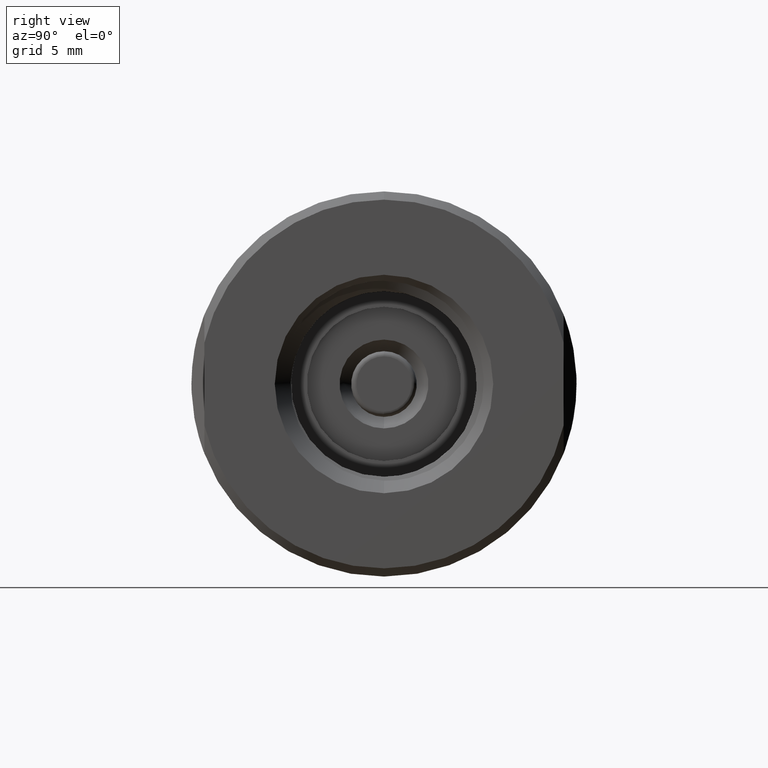
[diagram: clean part render]
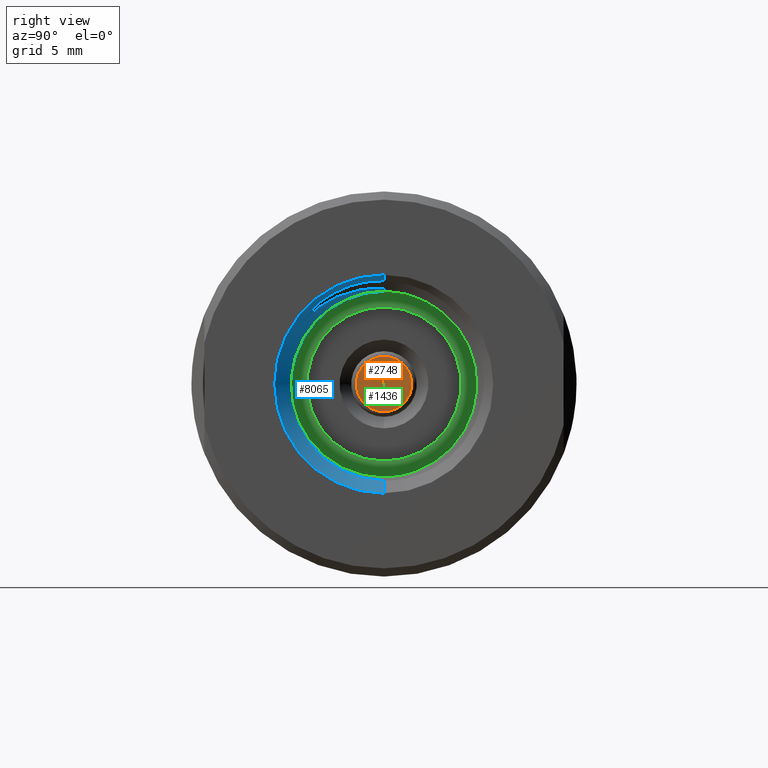
[diagram: same view with three faces highlighted in distinct colors, each labeled with its STEP entity id]
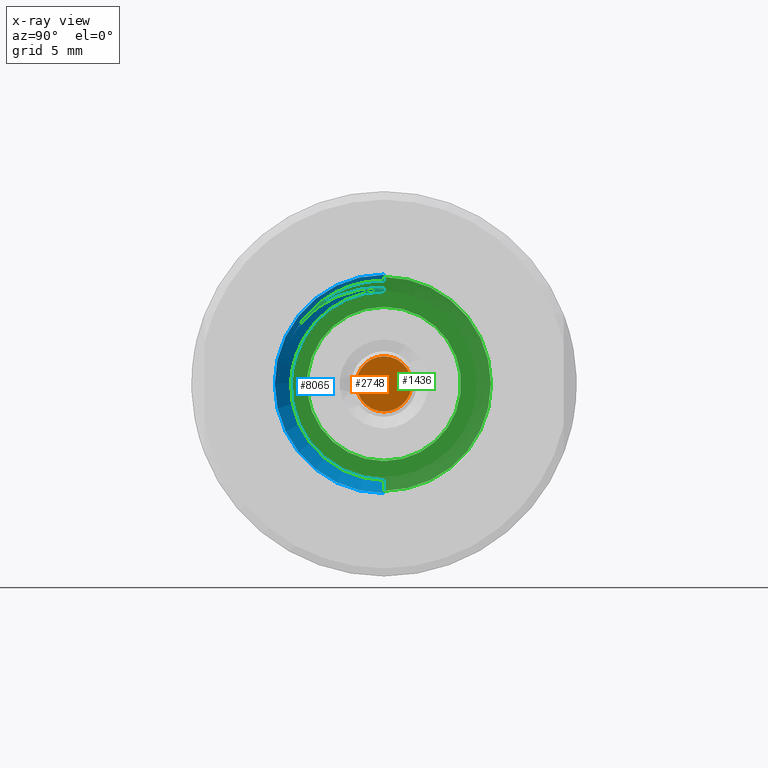
[diagram: x-ray of the same camera — body ghosted, the three highlighted faces saturated]
A machine part, right view with three faces highlighted in distinct colors.
The next image is the same camera in x-ray (body ghosted, the three faces saturated) — at least one of them is partly hidden behind the body in this view.
Their STEP definitions:

[orange] entity #2748 — the highlighted planar face has unit normal (-1, 0, -0).
#1086 = CARTESIAN_POINT ( 'NONE',  ( 0.3025000000000001021, 0.0000000000000000000, 0.0000000000000000000 ) ) ;
#1302 = CARTESIAN_POINT ( 'NONE',  ( 0.3024999999999999911, 0.06721877707974310834, 0.0000000000000000000 ) ) ;
#2484 = VERTEX_POINT ( 'NONE', #9034 ) ;
#2748 = ADVANCED_FACE ( 'NONE', ( #9427 ), #11337, .F. ) ;
#3283 = AXIS2_PLACEMENT_3D ( 'NONE', #4551, #8169, #3673 ) ;
#3673 = DIRECTION ( 'NONE',  ( 0.0000000000000000000, 0.0000000000000000000, 1.000000000000000000 ) ) ;
#3944 = AXIS2_PLACEMENT_3D ( 'NONE', #1302, #4921, #8851 ) ;
#4551 = CARTESIAN_POINT ( 'NONE',  ( 0.3025000000000001021, 0.0000000000000000000, 0.0000000000000000000 ) ) ;
#4842 = VERTEX_POINT ( 'NONE', #11133 ) ;
#4921 = DIRECTION ( 'NONE',  ( -1.000000000000000000, 0.0000000000000000000, -0.0000000000000000000 ) ) ;
#5866 = ORIENTED_EDGE ( 'NONE', *, *, #9122, .F. ) ;
#8169 = DIRECTION ( 'NONE',  ( -1.000000000000000000, -0.0000000000000000000, -0.0000000000000000000 ) ) ;
#8330 = DIRECTION ( 'NONE',  ( 0.0000000000000000000, 0.0000000000000000000, 1.000000000000000000 ) ) ;
#8769 = CIRCLE ( 'NONE', #10270, 0.06721877707974310834 ) ;
#8851 = DIRECTION ( 'NONE',  ( -0.0000000000000000000, 0.0000000000000000000, 1.000000000000000000 ) ) ;
#9034 = CARTESIAN_POINT ( 'NONE',  ( 0.3025000000000001021, 8.231926019330687993E-18, -0.06721877707974310834 ) ) ;
#9122 = EDGE_CURVE ( 'NONE', #2484, #4842, #9704, .T. ) ;
#9427 = FACE_OUTER_BOUND ( 'NONE', #11098, .T. ) ;
#9704 = CIRCLE ( 'NONE', #3283, 0.06721877707974310834 ) ;
#10008 = EDGE_CURVE ( 'NONE', #4842, #2484, #8769, .T. ) ;
#10270 = AXIS2_PLACEMENT_3D ( 'NONE', #1086, #10885, #8330 ) ;
#10323 = ORIENTED_EDGE ( 'NONE', *, *, #10008, .F. ) ;
#10885 = DIRECTION ( 'NONE',  ( -1.000000000000000000, -0.0000000000000000000, -0.0000000000000000000 ) ) ;
#11098 = EDGE_LOOP ( 'NONE', ( #10323, #5866 ) ) ;
#11133 = CARTESIAN_POINT ( 'NONE',  ( 0.3025000000000001021, 0.0000000000000000000, 0.06721877707974310834 ) ) ;
#11337 = PLANE ( 'NONE',  #3944 ) ;

[blue] entity #8065 — the highlighted conical surface has half-angle 45 deg.
#102 = CARTESIAN_POINT ( 'NONE',  ( 0.8744999999999999440, 0.0000000000000000000, 0.0000000000000000000 ) ) ;
#214 = CIRCLE ( 'NONE', #4209, 0.2256250000000002143 ) ;
#381 = VERTEX_POINT ( 'NONE', #9686 ) ;
#409 = CARTESIAN_POINT ( 'NONE',  ( 0.8395145946546410665, -0.1800539232914825094, -0.1444201646552705776 ) ) ;
#469 = CARTESIAN_POINT ( 'NONE',  ( 0.8389224616653795374, -0.1957287973760878097, -0.1222292068754703975 ) ) ;
#594 = CARTESIAN_POINT ( 'NONE',  ( 0.8424609906127782377, -0.07134584786651282373, -0.2231628295338225765 ) ) ;
#595 = AXIS2_PLACEMENT_3D ( 'NONE', #102, #3741, #10066 ) ;
#646 = CARTESIAN_POINT ( 'NONE',  ( 0.8404150638325635914, 0.0000000000000000000, 0.2315400638325638416 ) ) ;
#710 = DIRECTION ( 'NONE',  ( 0.7071067811865474617, 8.659560562354932858E-17, 0.7071067811865474617 ) ) ;
#1004 = DIRECTION ( 'NONE',  ( -1.000000000000000000, -0.0000000000000000000, -0.0000000000000000000 ) ) ;
#1134 = LINE ( 'NONE', #6775, #10857 ) ;
#1367 = CARTESIAN_POINT ( 'NONE',  ( 0.8408578305614050619, -0.1350149470285866571, -0.1888629114149180388 ) ) ;
#1579 = B_SPLINE_CURVE_WITH_KNOTS ( 'NONE', 3,
 ( #4326, #7038, #10602, #10773, #8936, #8059, #5318, #7881 ),
 .UNSPECIFIED., .F., .F.,
 ( 4, 2, 2, 4 ),
 ( 4.063473846900459003E-14, 0.002526480793409014488, 0.003789721190093203133, 0.005052961586777392211 ),
 .UNSPECIFIED. ) ;
#1592 = EDGE_CURVE ( 'NONE', #4727, #5056, #6584, .T. ) ;
#1783 = CARTESIAN_POINT ( 'NONE',  ( 0.8580957668529122229, -0.2019221485144332140, 0.1465193883147209997 ) ) ;
#2200 = CARTESIAN_POINT ( 'NONE',  ( 0.8379030200675710027, -0.2144202887096037513, -0.08099768611771025750 ) ) ;
#2260 = CARTESIAN_POINT ( 'NONE',  ( 0.8432538000659932642, -0.03596837756054143548, -0.2317796848336532711 ) ) ;
#2319 = CARTESIAN_POINT ( 'NONE',  ( 0.8609815397031210793, -0.05665131411257998129, 0.2460691444897302460 ) ) ;
#2326 = CARTESIAN_POINT ( 'NONE',  ( 0.8412549591635868351, -0.1200812618644753471, -0.1991560632365362571 ) ) ;
#2617 = VERTEX_POINT ( 'NONE', #11160 ) ;
#2680 = ORIENTED_EDGE ( 'NONE', *, *, #6706, .T. ) ;
#3121 = VERTEX_POINT ( 'NONE', #7335 ) ;
#3155 = CARTESIAN_POINT ( 'NONE',  ( 0.8372889807721299871, -0.2219262839085254235, -0.05480400957440628718 ) ) ;
#3181 = ORIENTED_EDGE ( 'NONE', *, *, #8981, .T. ) ;
#3284 = CARTESIAN_POINT ( 'NONE',  ( 0.8370874515539109550, -0.2237178741658921444, -0.04596352235974495576 ) ) ;
#3293 = ORIENTED_EDGE ( 'NONE', *, *, #8839, .F. ) ;
#3316 = LINE ( 'NONE', #8819, #10085 ) ;
#3384 = VERTEX_POINT ( 'NONE', #11498 ) ;
#3682 = FACE_OUTER_BOUND ( 'NONE', #8155, .T. ) ;
#3687 = CARTESIAN_POINT ( 'NONE',  ( 0.8572336971225656965, -0.1942816626059626628, 0.1551291188613029837 ) ) ;
#3741 = DIRECTION ( 'NONE',  ( 1.000000000000000000, 0.0000000000000000000, 0.0000000000000000000 ) ) ;
#4052 = CARTESIAN_POINT ( 'NONE',  ( 0.8376960981024541564, -0.2172889835147257809, -0.07229385120920227281 ) ) ;
#4170 = CARTESIAN_POINT ( 'NONE',  ( 0.8364889926598800818, -0.2275230962180369021, -0.01915746854436102195 ) ) ;
#4209 = AXIS2_PLACEMENT_3D ( 'NONE', #6404, #1004, #9078 ) ;
#4326 = CARTESIAN_POINT ( 'NONE',  ( 0.8615632937499609900, -0.2279481215143182027, 0.1090459889054772730 ) ) ;
#4398 = CARTESIAN_POINT ( 'NONE',  ( 0.8476918553817686108, -0.09030376725192215681, 0.2222537784554064755 ) ) ;
#4457 = CARTESIAN_POINT ( 'NONE',  ( 0.8521852969208660866, -0.1416780881531606862, 0.1981338047780091816 ) ) ;
#4727 = VERTEX_POINT ( 'NONE', #11695 ) ;
#4867 = CARTESIAN_POINT ( 'NONE',  ( 0.8344999999999999085, -0.2144472891829276306, 0.07013558859162623282 ) ) ;
#4922 = CARTESIAN_POINT ( 'NONE',  ( 0.8414578593378857496, -0.1122212167723312809, -0.2039202867966786736 ) ) ;
#4950 = CONICAL_SURFACE ( 'NONE', #595, 0.2656250000000001665, 0.7853981633974482790 ) ;
#4955 = ORIENTED_EDGE ( 'NONE', *, *, #7487, .T. ) ;
#4960 = CIRCLE ( 'NONE', #10454, 0.2656250000000001665 ) ;
#5056 = VERTEX_POINT ( 'NONE', #7873 ) ;
#5221 = CARTESIAN_POINT ( 'NONE',  ( 0.8615632937499609900, -0.2279481215143182027, 0.1090459889054772730 ) ) ;
#5281 = CARTESIAN_POINT ( 'NONE',  ( 0.8495059796296743349, -0.1115232542353528922, 0.2144410660428480997 ) ) ;
#5318 = CARTESIAN_POINT ( 'NONE',  ( 0.8615632937499994037, -0.09971468365726138261, 0.2327731786314838347 ) ) ;
#5397 = CARTESIAN_POINT ( 'NONE',  ( 0.8439986958020705421, -0.04543680640291808404, 0.2309693384363216140 ) ) ;
#5490 = B_SPLINE_CURVE_WITH_KNOTS ( 'NONE', 3,
 ( #6819, #10439, #2319, #9255, #7479, #10204 ),
 .UNSPECIFIED., .F., .F.,
 ( 4, 2, 4 ),
 ( 3.027191875034677978E-16, 0.001081903063913643420, 0.002163806127826984130 ),
 .UNSPECIFIED. ) ;
#5692 = CARTESIAN_POINT ( 'NONE',  ( 0.8615632937499999588, -0.08407650426676893662, 0.2382908206972444987 ) ) ;
#5697 = VERTEX_POINT ( 'NONE', #6414 ) ;
#5835 = ORIENTED_EDGE ( 'NONE', *, *, #10151, .T. ) ;
#5862 = CARTESIAN_POINT ( 'NONE',  ( 0.8744999999999999440, 0.0000000000000000000, 0.0000000000000000000 ) ) ;
#5934 = CARTESIAN_POINT ( 'NONE',  ( 0.8361062614581600272, -0.2279463001749666429, -0.0006848785715610091179 ) ) ;
#6404 = CARTESIAN_POINT ( 'NONE',  ( 0.8344999999999999085, 0.0000000000000000000, 0.0000000000000000000 ) ) ;
#6414 = CARTESIAN_POINT ( 'NONE',  ( 0.8344999999999999085, 3.008038700405688437E-17, 0.2256250000000001588 ) ) ;
#6475 = ORIENTED_EDGE ( 'NONE', *, *, #7726, .T. ) ;
#6584 = B_SPLINE_CURVE_WITH_KNOTS ( 'NONE', 3,
 ( #646, #7899, #8842, #5397, #9010, #4398, #5281, #4457, #8074, #7220, #9068, #3687, #1783, #11753, #10016, #5221 ),
 .UNSPECIFIED., .F., .F.,
 ( 4, 2, 2, 2, 2, 2, 2, 4 ),
 ( 0.001840068192699931575, 0.002707008220255356819, 0.003573948247810781412, 0.005307828302921631033, 0.006174768330477056061, 0.007041708358032479353, 0.007908648385587904381, 0.008775588413143327673 ),
 .UNSPECIFIED. ) ;
#6705 = CARTESIAN_POINT ( 'NONE',  ( 0.8438262971351850883, -0.009012248209546326952, -0.2349512971351852275 ) ) ;
#6706 = EDGE_CURVE ( 'NONE', #3384, #9854, #7847, .T. ) ;
#6775 = CARTESIAN_POINT ( 'NONE',  ( 0.8744999999999999440, 3.252968060235159152E-17, 0.2656250000000001665 ) ) ;
#6811 = DIRECTION ( 'NONE',  ( -1.000000000000000000, -0.0000000000000000000, -0.0000000000000000000 ) ) ;
#6819 = CARTESIAN_POINT ( 'NONE',  ( 0.8615632937499999588, -0.08407650426676893662, 0.2382908206972444987 ) ) ;
#6823 = CARTESIAN_POINT ( 'NONE',  ( 0.8402781127310737785, -0.1556972543523091612, -0.1714264763665986624 ) ) ;
#6838 = VECTOR ( 'NONE', #710, 39.37007874015748854 ) ;
#6891 = CARTESIAN_POINT ( 'NONE',  ( 0.8353231071987554657, -0.2244138106830233792, 0.03525798444140573751 ) ) ;
#6918 = DIRECTION ( 'NONE',  ( 0.7071067811865474617, 0.0000000000000000000, -0.7071067811865474617 ) ) ;
#6946 = CARTESIAN_POINT ( 'NONE',  ( 0.8744999999999999440, 3.252968060235159152E-17, 0.2656250000000001665 ) ) ;
#6949 = CARTESIAN_POINT ( 'NONE',  ( 0.8406624671163698270, -0.1421357920105183470, -0.1833142595993298707 ) ) ;
#7038 = CARTESIAN_POINT ( 'NONE',  ( 0.8615632937500000699, -0.2136355203680427584, 0.1389648385402079134 ) ) ;
#7220 = CARTESIAN_POINT ( 'NONE',  ( 0.8547518752504034145, -0.1695154050268884993, 0.1784587142685854222 ) ) ;
#7335 = CARTESIAN_POINT ( 'NONE',  ( 0.8440096189432333418, -4.366814205762254684E-15, -0.2351346189432334532 ) ) ;
#7479 = CARTESIAN_POINT ( 'NONE',  ( 0.8601292508317774921, -0.01418212926947332204, 0.2512542508317416878 ) ) ;
#7487 = EDGE_CURVE ( 'NONE', #3121, #381, #10084, .T. ) ;
#7714 = CARTESIAN_POINT ( 'NONE',  ( 0.8397112384856530998, -0.1743183767203317358, -0.1515949905640487372 ) ) ;
#7724 = DIRECTION ( 'NONE',  ( 0.7071067811865474617, 8.659560562354932858E-17, 0.7071067811865474617 ) ) ;
#7726 = EDGE_CURVE ( 'NONE', #381, #5697, #214, .T. ) ;
#7834 = DIRECTION ( 'NONE',  ( 0.0000000000000000000, 0.0000000000000000000, 1.000000000000000000 ) ) ;
#7847 = LINE ( 'NONE', #6946, #6838 ) ;
#7850 = CARTESIAN_POINT ( 'NONE',  ( 0.8440096189432333418, -4.366814205762254684E-15, -0.2351346189432334532 ) ) ;
#7873 = CARTESIAN_POINT ( 'NONE',  ( 0.8615632937499609900, -0.2279481215143182027, 0.1090459889054772730 ) ) ;
#7881 = CARTESIAN_POINT ( 'NONE',  ( 0.8615632937499999588, -0.08407650426676893662, 0.2382908206972444987 ) ) ;
#7899 = CARTESIAN_POINT ( 'NONE',  ( 0.8412941536203421000, -0.01140287263141823160, 0.2324191536203423780 ) ) ;
#8059 = CARTESIAN_POINT ( 'NONE',  ( 0.8615632937499994037, -0.1146904491663871400, 0.2257700011022347464 ) ) ;
#8065 = ADVANCED_FACE ( 'NONE', ( #3682 ), #4950, .F. ) ;
#8074 = CARTESIAN_POINT ( 'NONE',  ( 0.8530618706404209384, -0.1513356395694922252, 0.1919695273895796195 ) ) ;
#8155 = EDGE_LOOP ( 'NONE', ( #6475, #5835, #8258, #3181, #11393, #2680, #3293, #8645, #4955 ) ) ;
#8258 = ORIENTED_EDGE ( 'NONE', *, *, #1592, .T. ) ;
#8336 = EDGE_CURVE ( 'NONE', #3121, #2617, #3316, .T. ) ;
#8645 = ORIENTED_EDGE ( 'NONE', *, *, #8336, .F. ) ;
#8671 = CARTESIAN_POINT ( 'NONE',  ( 0.8385197009978716531, -0.2043315796808593821, -0.1063799783989960029 ) ) ;
#8781 = VERTEX_POINT ( 'NONE', #5692 ) ;
#8819 = CARTESIAN_POINT ( 'NONE',  ( 0.8744999999999999440, 0.0000000000000000000, -0.2656250000000001665 ) ) ;
#8839 = EDGE_CURVE ( 'NONE', #2617, #9854, #4960, .T. ) ;
#8842 = CARTESIAN_POINT ( 'NONE',  ( 0.8421872629521118814, -0.02277049338385930127, 0.2324743061524752741 ) ) ;
#8874 = CARTESIAN_POINT ( 'NONE',  ( 0.8744999999999999440, 3.252968060235159152E-17, 0.2656250000000001665 ) ) ;
#8936 = CARTESIAN_POINT ( 'NONE',  ( 0.8615632937499994037, -0.1431938887248278003, 0.2088576136020718621 ) ) ;
#8981 = EDGE_CURVE ( 'NONE', #5056, #8781, #1579, .T. ) ;
#9010 = CARTESIAN_POINT ( 'NONE',  ( 0.8449227025634474808, -0.05680386948623908361, 0.2293934257943359423 ) ) ;
#9068 = CARTESIAN_POINT ( 'NONE',  ( 0.8555584814323707876, -0.1780903620067365301, 0.1710699520053344247 ) ) ;
#9078 = DIRECTION ( 'NONE',  ( 0.0000000000000000000, 0.0000000000000000000, 1.000000000000000000 ) ) ;
#9255 = CARTESIAN_POINT ( 'NONE',  ( 0.8604120312450729280, -0.02856107247739488042, 0.2503134657305404742 ) ) ;
#9552 = CARTESIAN_POINT ( 'NONE',  ( 0.8349185055673069566, -0.2205314068212649581, 0.05287905392368598412 ) ) ;
#9686 = CARTESIAN_POINT ( 'NONE',  ( 0.8344999999999999085, -0.2144472891829276306, 0.07013558859162623282 ) ) ;
#9854 = VERTEX_POINT ( 'NONE', #8874 ) ;
#10016 = CARTESIAN_POINT ( 'NONE',  ( 0.8606907166222392824, -0.2222291740633802193, 0.1189788008665285945 ) ) ;
#10066 = DIRECTION ( 'NONE',  ( 0.0000000000000000000, 0.0000000000000000000, -1.000000000000000000 ) ) ;
#10084 = B_SPLINE_CURVE_WITH_KNOTS ( 'NONE', 3,
 ( #7850, #6705, #11402, #2260, #11339, #594, #10442, #4922, #2326, #1367, #6949, #6823, #10572, #7714, #409, #469, #8671, #2200, #4052, #3155, #3284, #4170, #5934, #6891, #9552, #4867 ),
 .UNSPECIFIED., .F., .F.,
 ( 4, 2, 2, 2, 2, 2, 2, 2, 2, 2, 2, 2, 4 ),
 ( 0.02157714964423890561, 0.02226754478358046116, 0.02295793992292202018, 0.02433873020160513129, 0.02502912534094669031, 0.02571952048028824933, 0.02640991561962980488, 0.02710031075897136044, 0.02848110103765447154, 0.02917149617699602709, 0.02986189131633757918, 0.03124268159502069375, 0.03262347187370380486 ),
 .UNSPECIFIED. ) ;
#10085 = VECTOR ( 'NONE', #6918, 39.37007874015748854 ) ;
#10151 = EDGE_CURVE ( 'NONE', #5697, #4727, #1134, .T. ) ;
#10204 = CARTESIAN_POINT ( 'NONE',  ( 0.8598589838486342396, -6.336195174398536543E-13, 0.2509839838486346841 ) ) ;
#10439 = CARTESIAN_POINT ( 'NONE',  ( 0.8612703623066644276, -0.07047657437849129403, 0.2427786738740814187 ) ) ;
#10442 = CARTESIAN_POINT ( 'NONE',  ( 0.8420615824306488806, -0.08815468294197639776, -0.2166423959301291557 ) ) ;
#10454 = AXIS2_PLACEMENT_3D ( 'NONE', #5862, #6811, #7834 ) ;
#10572 = CARTESIAN_POINT ( 'NONE',  ( 0.8400920292220070973, -0.1621398409608918456, -0.1650895369299565096 ) ) ;
#10602 = CARTESIAN_POINT ( 'NONE',  ( 0.8615632937499994037, -0.1934957492962265935, 0.1658530537264827631 ) ) ;
#10773 = CARTESIAN_POINT ( 'NONE',  ( 0.8615632937499992927, -0.1565454243428791303, 0.1990452726706906095 ) ) ;
#10857 = VECTOR ( 'NONE', #7724, 39.37007874015748854 ) ;
#11083 = EDGE_CURVE ( 'NONE', #8781, #3384, #5490, .T. ) ;
#11160 = CARTESIAN_POINT ( 'NONE',  ( 0.8744999999999999440, 0.0000000000000000000, -0.2656250000000001665 ) ) ;
#11339 = CARTESIAN_POINT ( 'NONE',  ( 0.8430556300412791471, -0.04498452090625130323, -0.2299985352911203818 ) ) ;
#11393 = ORIENTED_EDGE ( 'NONE', *, *, #11083, .T. ) ;
#11402 = CARTESIAN_POINT ( 'NONE',  ( 0.8436385220460873580, -0.01800848180125250858, -0.2342471567218012973 ) ) ;
#11498 = CARTESIAN_POINT ( 'NONE',  ( 0.8598589838486342396, -6.336195174398536543E-13, 0.2509839838486346841 ) ) ;
#11695 = CARTESIAN_POINT ( 'NONE',  ( 0.8404150638325635914, 0.0000000000000000000, 0.2315400638325638416 ) ) ;
#11753 = CARTESIAN_POINT ( 'NONE',  ( 0.8598226527176259237, -0.2158769126243391956, 0.1284576879066450517 ) ) ;

[green] entity #1436 — the highlighted planar face has unit normal (1, 0, 0).
#122 = AXIS2_PLACEMENT_3D ( 'NONE', #4747, #2136, #5750 ) ;
#199 = CARTESIAN_POINT ( 'NONE',  ( 0.3744999999999999996, 0.0000000000000000000, 0.0000000000000000000 ) ) ;
#261 = EDGE_CURVE ( 'NONE', #11025, #3574, #11493, .T. ) ;
#523 = DIRECTION ( 'NONE',  ( 0.0000000000000000000, 0.0000000000000000000, 1.000000000000000000 ) ) ;
#563 = AXIS2_PLACEMENT_3D ( 'NONE', #10814, #2523, #6127 ) ;
#737 = EDGE_CURVE ( 'NONE', #1012, #5623, #11110, .T. ) ;
#766 = CIRCLE ( 'NONE', #563, 0.1875000000000000833 ) ;
#1012 = VERTEX_POINT ( 'NONE', #2395 ) ;
#1118 = FACE_BOUND ( 'NONE', #8648, .T. ) ;
#1255 = AXIS2_PLACEMENT_3D ( 'NONE', #9664, #4282, #523 ) ;
#1436 = ADVANCED_FACE ( 'NONE', ( #1118, #10089 ), #11151, .T. ) ;
#1440 = ORIENTED_EDGE ( 'NONE', *, *, #737, .F. ) ;
#1515 = EDGE_CURVE ( 'NONE', #5623, #1012, #9594, .T. ) ;
#1686 = EDGE_LOOP ( 'NONE', ( #1440, #7966 ) ) ;
#1993 = DIRECTION ( 'NONE',  ( 0.0000000000000000000, 0.0000000000000000000, 1.000000000000000000 ) ) ;
#2136 = DIRECTION ( 'NONE',  ( 1.000000000000000000, 0.0000000000000000000, 0.0000000000000000000 ) ) ;
#2395 = CARTESIAN_POINT ( 'NONE',  ( 0.3744999999999999996, 0.0000000000000000000, 0.2600000000000001199 ) ) ;
#2449 = DIRECTION ( 'NONE',  ( -1.000000000000000000, -0.0000000000000000000, -0.0000000000000000000 ) ) ;
#2523 = DIRECTION ( 'NONE',  ( -1.000000000000000000, -0.0000000000000000000, -0.0000000000000000000 ) ) ;
#3223 = ORIENTED_EDGE ( 'NONE', *, *, #6464, .T. ) ;
#3574 = VERTEX_POINT ( 'NONE', #11121 ) ;
#4282 = DIRECTION ( 'NONE',  ( -1.000000000000000000, -0.0000000000000000000, -0.0000000000000000000 ) ) ;
#4747 = CARTESIAN_POINT ( 'NONE',  ( 0.3744999999999999996, 0.0000000000000000000, 0.0000000000000000000 ) ) ;
#5590 = CARTESIAN_POINT ( 'NONE',  ( 0.3744999999999999996, 3.184081677783119916E-17, -0.2600000000000001199 ) ) ;
#5623 = VERTEX_POINT ( 'NONE', #5590 ) ;
#5750 = DIRECTION ( 'NONE',  ( 0.0000000000000000000, 0.0000000000000000000, -1.000000000000000000 ) ) ;
#6127 = DIRECTION ( 'NONE',  ( 0.0000000000000000000, 0.0000000000000000000, 1.000000000000000000 ) ) ;
#6464 = EDGE_CURVE ( 'NONE', #3574, #11025, #766, .T. ) ;
#6550 = AXIS2_PLACEMENT_3D ( 'NONE', #9611, #2449, #9670 ) ;
#6718 = DIRECTION ( 'NONE',  ( -1.000000000000000000, -0.0000000000000000000, -0.0000000000000000000 ) ) ;
#7588 = CARTESIAN_POINT ( 'NONE',  ( 0.3744999999999999996, 2.296212748401288342E-17, -0.1875000000000000833 ) ) ;
#7966 = ORIENTED_EDGE ( 'NONE', *, *, #1515, .F. ) ;
#8648 = EDGE_LOOP ( 'NONE', ( #3223, #9730 ) ) ;
#9594 = CIRCLE ( 'NONE', #1255, 0.2600000000000001199 ) ;
#9611 = CARTESIAN_POINT ( 'NONE',  ( 0.3744999999999999996, 0.0000000000000000000, 0.0000000000000000000 ) ) ;
#9664 = CARTESIAN_POINT ( 'NONE',  ( 0.3744999999999999996, 0.0000000000000000000, 0.0000000000000000000 ) ) ;
#9670 = DIRECTION ( 'NONE',  ( 0.0000000000000000000, 0.0000000000000000000, 1.000000000000000000 ) ) ;
#9730 = ORIENTED_EDGE ( 'NONE', *, *, #261, .T. ) ;
#10089 = FACE_OUTER_BOUND ( 'NONE', #1686, .T. ) ;
#10337 = AXIS2_PLACEMENT_3D ( 'NONE', #199, #6718, #1993 ) ;
#10814 = CARTESIAN_POINT ( 'NONE',  ( 0.3744999999999999996, 0.0000000000000000000, 0.0000000000000000000 ) ) ;
#11025 = VERTEX_POINT ( 'NONE', #7588 ) ;
#11110 = CIRCLE ( 'NONE', #6550, 0.2600000000000001199 ) ;
#11121 = CARTESIAN_POINT ( 'NONE',  ( 0.3744999999999999996, 0.0000000000000000000, 0.1875000000000000833 ) ) ;
#11151 = PLANE ( 'NONE',  #122 ) ;
#11493 = CIRCLE ( 'NONE', #10337, 0.1875000000000000833 ) ;